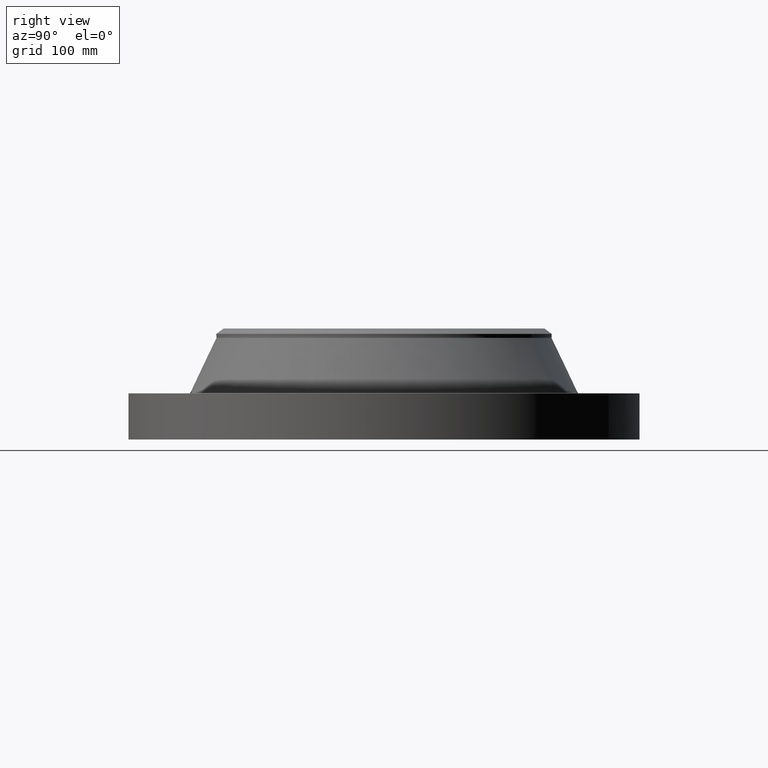
[diagram: clean part render]
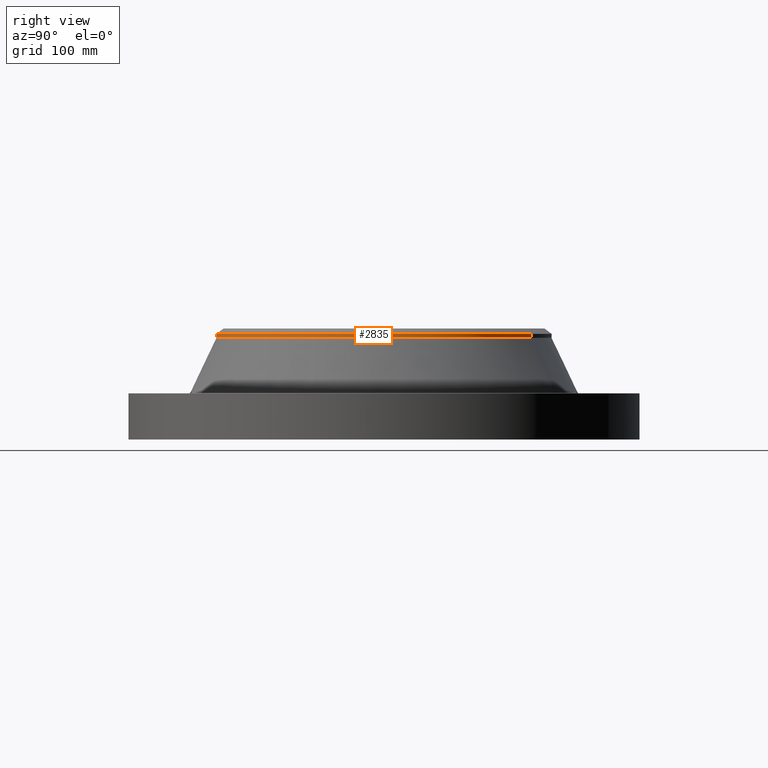
[diagram: same view with one face highlighted and labeled with its STEP entity id]
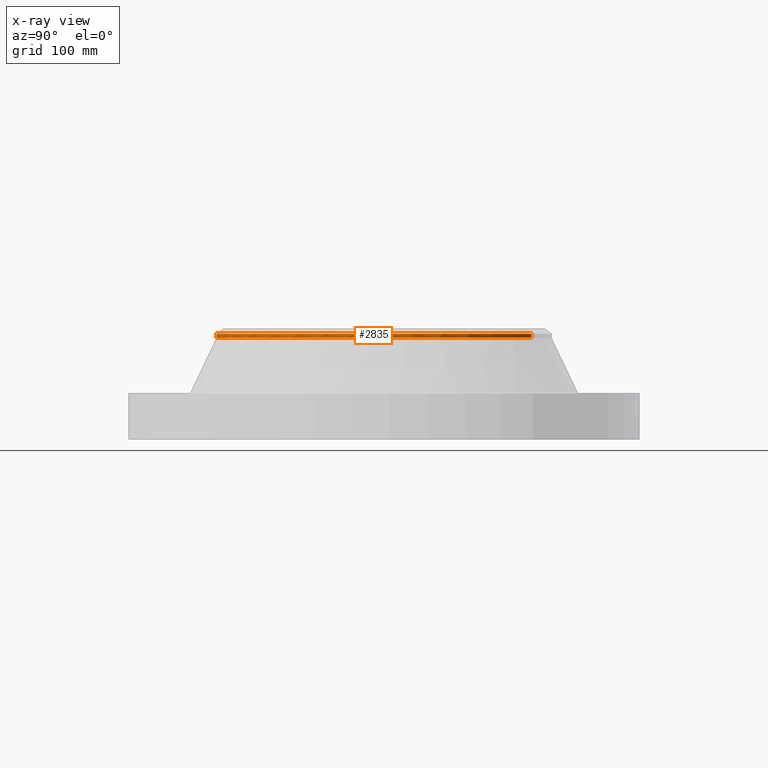
[diagram: x-ray of the same camera — body ghosted, the highlighted face saturated]
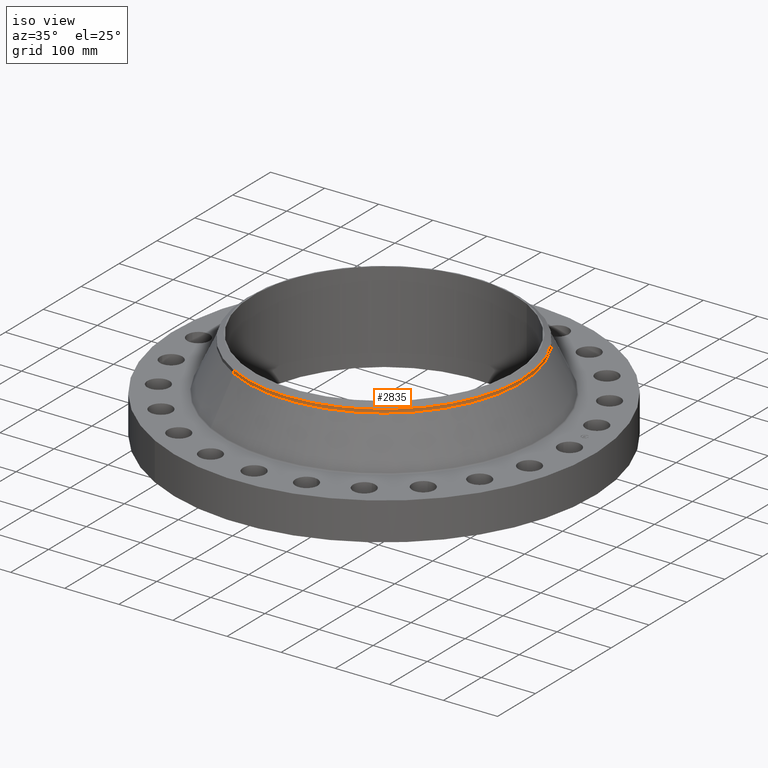
[diagram: same view with one face highlighted and labeled with its STEP entity id]
A machine part, right view. The second image highlights one B-rep face of the part: STEP entity #2835.
The next image is the same camera in x-ray: the body ghosted, the highlighted face saturated — about 0% of this face is hidden behind the body in this view.
A second angle (iso view) of the same face is appended — the face is thin or edge-on in the first view.
In plain terms, the highlighted cylindrical surface (partial cylindrical patch) has radius 254 mm, axis along (-0, 0, -1).
Its self-contained STEP definition (entity closure, byte-faithful):
#2519=AXIS2_PLACEMENT_3D('Circle Axis2P3D',#2517,#2518,$) ;
#2736=AXIS2_PLACEMENT_3D('Circle Axis2P3D',#2734,#2735,$) ;
#2775=AXIS2_PLACEMENT_3D('Circle Axis2P3D',#2773,#2774,$) ;
#2826=AXIS2_PLACEMENT_3D('Cylinder Axis2P3D',#2823,#2824,#2825) ;
#2483=CARTESIAN_POINT('Vertex',(-4.79425538604,-8.7758256189,6.06053548147)) ;
#2490=CARTESIAN_POINT('Vertex',(4.79425538605,8.77582561891,6.06053548145)) ;
#2517=CARTESIAN_POINT('Axis2P3D Location',(0.,0.,6.06053548147)) ;
#2731=CARTESIAN_POINT('Vertex',(4.79425538605,-8.77582561892,6.29675595393)) ;
#2734=CARTESIAN_POINT('Axis2P3D Location',(0.,0.,6.29675595393)) ;
#2738=CARTESIAN_POINT('Vertex',(4.79425538605,8.7758256189,6.29675595388)) ;
#2770=CARTESIAN_POINT('Vertex',(-4.79425538604,-8.7758256189,6.29675595388)) ;
#2773=CARTESIAN_POINT('Axis2P3D Location',(0.,0.,6.29675595393)) ;
#2798=CARTESIAN_POINT('Line Origine',(4.79425538605,8.7758256189,6.17864571766)) ;
#2803=CARTESIAN_POINT('Line Origine',(-4.79425538605,-8.7758256189,6.17864571766)) ;
#2823=CARTESIAN_POINT('Axis2P3D Location',(0.,0.,3.31000000001)) ;
#2518=DIRECTION('Axis2P3D Direction',(-0.,0.,-0.0393700787402)) ;
#2735=DIRECTION('Axis2P3D Direction',(-0.,0.,-0.0393700787402)) ;
#2774=DIRECTION('Axis2P3D Direction',(-0.,0.,-0.0393700787402)) ;
#2799=DIRECTION('Vector Direction',(0.,0.,-0.0393700787402)) ;
#2804=DIRECTION('Vector Direction',(0.,0.,-0.0393700787402)) ;
#2824=DIRECTION('Axis2P3D Direction',(-0.,0.,-0.0393700787402)) ;
#2825=DIRECTION('Axis2P3D XDirection',(0.0188750212049,0.0345504945626,0.)) ;
#2800=VECTOR('Line Direction',#2799,0.0393700787402) ;
#2805=VECTOR('Line Direction',#2804,0.0393700787402) ;
#2829=ORIENTED_EDGE('',*,*,#2807,.F.) ;
#2830=ORIENTED_EDGE('',*,*,#2521,.F.) ;
#2831=ORIENTED_EDGE('',*,*,#2802,.T.) ;
#2832=ORIENTED_EDGE('',*,*,#2740,.F.) ;
#2833=ORIENTED_EDGE('',*,*,#2777,.T.) ;
#2835=ADVANCED_FACE('PartBody',(#2834),#2827,.T.) ;
#2520=CIRCLE('generated circle',#2519,10.) ;
#2737=CIRCLE('generated circle',#2736,10.) ;
#2776=CIRCLE('generated circle',#2775,10.) ;
#2827=CYLINDRICAL_SURFACE('generated cylinder',#2826,10.) ;
#2521=EDGE_CURVE('',#2491,#2484,#2520,.T.) ;
#2740=EDGE_CURVE('',#2732,#2739,#2737,.F.) ;
#2777=EDGE_CURVE('',#2732,#2771,#2776,.T.) ;
#2802=EDGE_CURVE('',#2491,#2739,#2801,.F.) ;
#2807=EDGE_CURVE('',#2484,#2771,#2806,.F.) ;
#2828=EDGE_LOOP('',(#2829,#2830,#2831,#2832,#2833)) ;
#2834=FACE_OUTER_BOUND('',#2828,.T.) ;
#2801=LINE('Line',#2798,#2800) ;
#2806=LINE('Line',#2803,#2805) ;
#2484=VERTEX_POINT('',#2483) ;
#2491=VERTEX_POINT('',#2490) ;
#2732=VERTEX_POINT('',#2731) ;
#2739=VERTEX_POINT('',#2738) ;
#2771=VERTEX_POINT('',#2770) ;